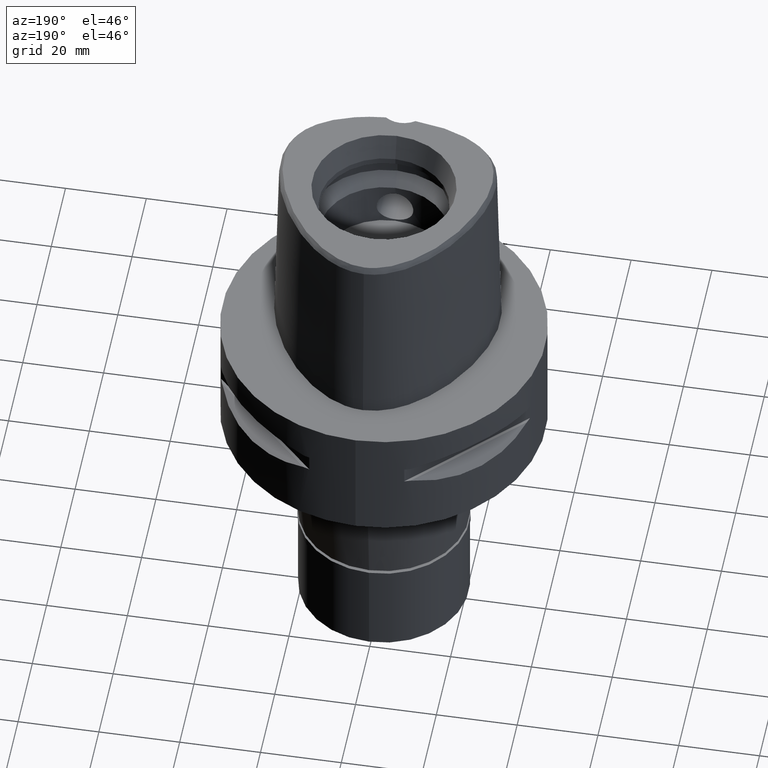
[diagram: clean part render]
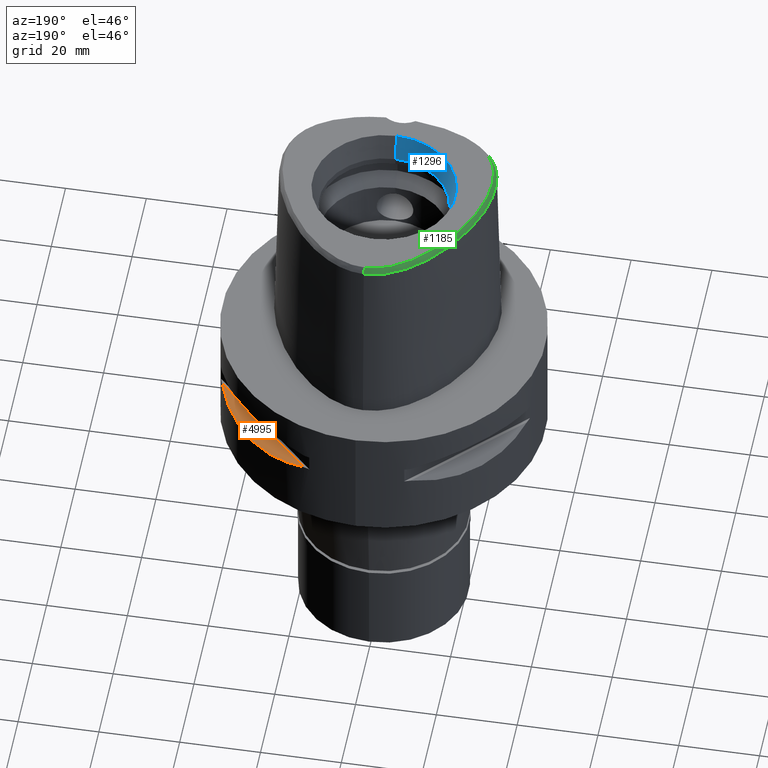
[diagram: same view with three faces highlighted in distinct colors, each labeled with its STEP entity id]
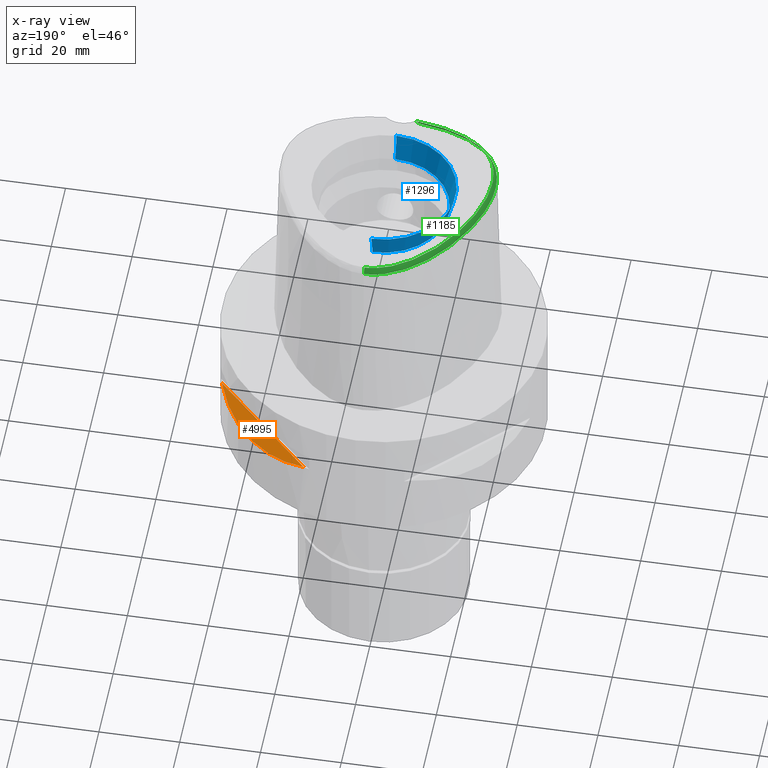
[diagram: x-ray of the same camera — body ghosted, the three highlighted faces saturated]
A machine part, auxiliary view with three faces highlighted in distinct colors.
The next image is the same camera in x-ray (body ghosted, the three faces saturated) — at least one of them is partly hidden behind the body in this view.
Their STEP definitions:

[orange] entity #4995 — the highlighted planar face has unit normal (-0.3536, -0.3536, -0.866).
#94 = CARTESIAN_POINT ( 'NONE',  ( 22.55421454656422853, 33.03835700910543949, -15.93168855142912044 ) ) ;
#198 = CARTESIAN_POINT ( 'NONE',  ( 18.89342208871622120, 35.39137327286633194, -15.39779115588365599 ) ) ;
#392 = CARTESIAN_POINT ( 'NONE',  ( 36.35358138589327126, 16.81132763100201544, -14.94059947015120926 ) ) ;
#438 = CARTESIAN_POINT ( 'NONE',  ( 33.79139713908592313, 21.40429668490280335, -15.76966389594719864 ) ) ;
#466 = FACE_OUTER_BOUND ( 'NONE', #1124, .T. ) ;
#757 = VERTEX_POINT ( 'NONE', #4794 ) ;
#776 = CARTESIAN_POINT ( 'NONE',  ( 30.34851826271004782, 26.21995747454793602, -16.33009976521915263 ) ) ;
#845 = CARTESIAN_POINT ( 'NONE',  ( 37.74622163926999718, 13.23717311056000057, -14.05000000000000071 ) ) ;
#1124 = EDGE_LOOP ( 'NONE', ( #4839, #3040 ) ) ;
#1168 = AXIS2_PLACEMENT_3D ( 'NONE', #2107, #2431, #4819 ) ;
#1173 = CARTESIAN_POINT ( 'NONE',  ( 33.91944728533342612, 21.20128033779756294, -15.73905907260444614 ) ) ;
#1268 = CARTESIAN_POINT ( 'NONE',  ( 21.75464223249177920, 33.56701934068340165, -15.82109001420614547 ) ) ;
#1573 = CARTESIAN_POINT ( 'NONE',  ( 21.50560509406271237, 33.72697758561020009, -15.78472370821742921 ) ) ;
#1652 = CARTESIAN_POINT ( 'NONE',  ( 23.60097336452848182, 32.30995221951866370, -16.06165603927653507 ) ) ;
#1662 = B_SPLINE_CURVE_WITH_KNOTS ( 'NONE', 3,
 ( #845, #4342, #392, #3511, #4676, #2399, #1173, #3960, #438, #2797, #3210, #2427, #776, #3988, #3587, #1652, #94, #3914, #1268, #2351, #2448, #4393, #1573, #198, #1822, #1776 ),
 .UNSPECIFIED., .F., .F.,
 ( 4, 1, 1, 1, 1, 1, 1, 2, 2, 2, 1, 1, 1, 1, 1, 1, 2, 2, 4 ),
 ( 0.0000000000000000000, 0.1249999999999915345, 0.1874999999999875377, 0.2187499999999857891, 0.2343749999999851508, 0.2421874999999849842, 0.2460937499999846234, 0.2480468749999845957, 0.2499999999999845679, 0.5000000000000065503, 0.6250000000000176525, 0.6875000000000233147, 0.7187500000000262013, 0.7343750000000277556, 0.7421875000000283107, 0.7460937500000288658, 0.7480468750000289768, 0.7500000000000289768, 1.000000000000000000 ),
 .UNSPECIFIED. ) ;
#1776 = CARTESIAN_POINT ( 'NONE',  ( 13.23717311056000057, 37.74622163926999718, -14.05000000000000071 ) ) ;
#1822 = CARTESIAN_POINT ( 'NONE',  ( 16.14402792110257678, 36.72682052670324993, -14.82054974552758786 ) ) ;
#2049 = CARTESIAN_POINT ( 'NONE',  ( 13.23717311056000057, 37.74622163926999718, -14.05000000000000071 ) ) ;
#2107 = CARTESIAN_POINT ( 'NONE',  ( 43.16936690458000214, 7.814027845251999338, -14.05000000000000071 ) ) ;
#2351 = CARTESIAN_POINT ( 'NONE',  ( 21.62017158009643936, 33.65365962422873736, -15.80156334789086969 ) ) ;
#2399 = CARTESIAN_POINT ( 'NONE',  ( 34.09685321779859635, 20.91613153242112588, -15.69507322892875756 ) ) ;
#2417 = DIRECTION ( 'NONE',  ( 0.7071067811865474617, -0.7071067811865474617, 0.0000000000000000000 ) ) ;
#2427 = CARTESIAN_POINT ( 'NONE',  ( 32.16767032370579216, 23.95303639238192162, -16.14729882780368442 ) ) ;
#2431 = DIRECTION ( 'NONE',  ( -0.3535533905933054277, -0.3535533905933049836, -0.8660254037844130615 ) ) ;
#2441 = CARTESIAN_POINT ( 'NONE',  ( 13.23717311056000057, 37.74622163926999718, -14.05000000000000071 ) ) ;
#2448 = CARTESIAN_POINT ( 'NONE',  ( 21.56243030661629945, 33.69065616467204194, -15.79309434609245422 ) ) ;
#2755 = VERTEX_POINT ( 'NONE', #2049 ) ;
#2797 = CARTESIAN_POINT ( 'NONE',  ( 33.76566745675005166, 21.44484052678286190, -15.77571175125576808 ) ) ;
#3040 = ORIENTED_EDGE ( 'NONE', *, *, #4112, .T. ) ;
#3210 = CARTESIAN_POINT ( 'NONE',  ( 33.75216276490053247, 21.46607685731535753, -15.77886817953057630 ) ) ;
#3215 = PLANE ( 'NONE',  #1168 ) ;
#3276 = VECTOR ( 'NONE', #2417, 1000.000000000000114 ) ;
#3511 = CARTESIAN_POINT ( 'NONE',  ( 35.11589783530614284, 19.18269457493275354, -15.40342377741106539 ) ) ;
#3587 = CARTESIAN_POINT ( 'NONE',  ( 25.62819065486032599, 30.77249687754699181, -16.26160051742884249 ) ) ;
#3914 = CARTESIAN_POINT ( 'NONE',  ( 22.02254759438254084, 33.39247868354903659, -15.85920599531261210 ) ) ;
#3960 = CARTESIAN_POINT ( 'NONE',  ( 33.82993376593504564, 21.34345216682095625, -15.76055673748757613 ) ) ;
#3988 = CARTESIAN_POINT ( 'NONE',  ( 27.25214773983623928, 29.31642813391731295, -16.33014064577227487 ) ) ;
#4112 = EDGE_CURVE ( 'NONE', #757, #2755, #1662, .T. ) ;
#4342 = CARTESIAN_POINT ( 'NONE',  ( 37.23659447744845608, 14.69039122918119666, -14.43521939500983819 ) ) ;
#4346 = EDGE_CURVE ( 'NONE', #2755, #757, #4786, .T. ) ;
#4393 = CARTESIAN_POINT ( 'NONE',  ( 21.52391145898906544, 33.71529052282368610, -15.78742602700007680 ) ) ;
#4676 = CARTESIAN_POINT ( 'NONE',  ( 34.44518065740277279, 20.34261333234973534, -15.60313948593975120 ) ) ;
#4786 = LINE ( 'NONE', #2441, #3276 ) ;
#4794 = CARTESIAN_POINT ( 'NONE',  ( 37.74622163926999718, 13.23717311056000057, -14.05000000000000071 ) ) ;
#4819 = DIRECTION ( 'NONE',  ( 0.0000000000000000000, -0.9258200997725358761, 0.3779644730092654448 ) ) ;
#4839 = ORIENTED_EDGE ( 'NONE', *, *, #4346, .T. ) ;
#4995 = ADVANCED_FACE ( 'NONE', ( #466 ), #3215, .F. ) ;

[blue] entity #1296 — the highlighted conical surface has half-angle 15 deg.
#64 = CARTESIAN_POINT ( 'NONE',  ( 0.0000000000000000000, 16.00000000000000000, 41.60000000000000142 ) ) ;
#135 = CARTESIAN_POINT ( 'NONE',  ( 0.0000000000000000000, 0.0000000000000000000, 48.00000000000000000 ) ) ;
#701 = CARTESIAN_POINT ( 'NONE',  ( 0.0000000000000000000, 0.0000000000000000000, 41.60000000000000142 ) ) ;
#738 = AXIS2_PLACEMENT_3D ( 'NONE', #135, #835, #886 ) ;
#742 = CARTESIAN_POINT ( 'NONE',  ( 0.0000000000000000000, 0.0000000000000000000, 44.79999999999999716 ) ) ;
#743 = ORIENTED_EDGE ( 'NONE', *, *, #4340, .T. ) ;
#835 = DIRECTION ( 'NONE',  ( 0.0000000000000000000, 0.0000000000000000000, 1.000000000000000000 ) ) ;
#886 = DIRECTION ( 'NONE',  ( 0.0000000000000000000, 1.000000000000000000, 0.0000000000000000000 ) ) ;
#941 = VERTEX_POINT ( 'NONE', #3027 ) ;
#1063 = VERTEX_POINT ( 'NONE', #1784 ) ;
#1296 = ADVANCED_FACE ( 'NONE', ( #3084 ), #3304, .F. ) ;
#1416 = VERTEX_POINT ( 'NONE', #5032 ) ;
#1449 = DIRECTION ( 'NONE',  ( 0.0000000000000000000, -0.2588190451025869088, 0.9659258262890505486 ) ) ;
#1638 = EDGE_LOOP ( 'NONE', ( #3102, #3596, #3411, #743 ) ) ;
#1784 = CARTESIAN_POINT ( 'NONE',  ( 0.0000000000000000000, 17.71487483155999954, 48.00000000000000000 ) ) ;
#1825 = DIRECTION ( 'NONE',  ( 0.0000000000000000000, 0.0000000000000000000, 1.000000000000000000 ) ) ;
#2031 = DIRECTION ( 'NONE',  ( 0.0000000000000000000, 0.2588190451025869088, 0.9659258262890505486 ) ) ;
#2244 = EDGE_CURVE ( 'NONE', #2711, #941, #4047, .T. ) ;
#2247 = AXIS2_PLACEMENT_3D ( 'NONE', #701, #4957, #3890 ) ;
#2709 = VECTOR ( 'NONE', #2031, 1000.000000000000000 ) ;
#2711 = VERTEX_POINT ( 'NONE', #64 ) ;
#2727 = CARTESIAN_POINT ( 'NONE',  ( 0.0000000000000000000, 16.00000000000000000, 41.60000000000000142 ) ) ;
#3027 = CARTESIAN_POINT ( 'NONE',  ( 0.0000000000000000000, -16.00000000000000000, 41.60000000000000142 ) ) ;
#3084 = FACE_OUTER_BOUND ( 'NONE', #1638, .T. ) ;
#3102 = ORIENTED_EDGE ( 'NONE', *, *, #4800, .F. ) ;
#3304 = CONICAL_SURFACE ( 'NONE', #3543, 16.85743741578000154, 0.2617993877991000029 ) ;
#3411 = ORIENTED_EDGE ( 'NONE', *, *, #4003, .T. ) ;
#3543 = AXIS2_PLACEMENT_3D ( 'NONE', #742, #1825, #5003 ) ;
#3596 = ORIENTED_EDGE ( 'NONE', *, *, #2244, .F. ) ;
#3890 = DIRECTION ( 'NONE',  ( 0.0000000000000000000, 1.000000000000000000, 0.0000000000000000000 ) ) ;
#4003 = EDGE_CURVE ( 'NONE', #2711, #1063, #4371, .T. ) ;
#4047 = CIRCLE ( 'NONE', #2247, 16.00000000000000000 ) ;
#4217 = LINE ( 'NONE', #4883, #4752 ) ;
#4340 = EDGE_CURVE ( 'NONE', #1063, #1416, #5000, .T. ) ;
#4371 = LINE ( 'NONE', #2727, #2709 ) ;
#4752 = VECTOR ( 'NONE', #1449, 1000.000000000000000 ) ;
#4800 = EDGE_CURVE ( 'NONE', #941, #1416, #4217, .T. ) ;
#4883 = CARTESIAN_POINT ( 'NONE',  ( 0.0000000000000000000, -16.00000000000000000, 41.60000000000000142 ) ) ;
#4957 = DIRECTION ( 'NONE',  ( 0.0000000000000000000, 0.0000000000000000000, 1.000000000000000000 ) ) ;
#5000 = CIRCLE ( 'NONE', #738, 17.71487483155999954 ) ;
#5003 = DIRECTION ( 'NONE',  ( 0.0000000000000000000, 1.000000000000000000, 0.0000000000000000000 ) ) ;
#5032 = CARTESIAN_POINT ( 'NONE',  ( 0.0000000000000000000, -17.71487483155999954, 48.00000000000000000 ) ) ;

[green] entity #1185 — the highlighted face is a freeform B-spline surface patch.
#8 = CARTESIAN_POINT ( 'NONE',  ( -25.35524926864999884, 1.556082187546999895, 46.95311489408000227 ) ) ;
#35 = CARTESIAN_POINT ( 'NONE',  ( -20.28439755927000121, 13.19727454158000057, 46.95311489878000089 ) ) ;
#50 = CARTESIAN_POINT ( 'NONE',  ( -1.216549040600000094E-11, 28.41206021534999593, 46.52071719450999154 ) ) ;
#52 = CARTESIAN_POINT ( 'NONE',  ( -3.200281168442999924, -24.40700646898000059, 46.33865665327000016 ) ) ;
#55 = CARTESIAN_POINT ( 'NONE',  ( -24.57737414961999889, 3.019733774041000185, 47.56757463800000352 ) ) ;
#77 = CARTESIAN_POINT ( 'NONE',  ( -25.31129339834999570, -1.486760530842999861, 48.18203439223000117 ) ) ;
#93 = CARTESIAN_POINT ( 'NONE',  ( -4.489954052492726611, 26.80204639255456200, 48.00000000000842704 ) ) ;
#97 = EDGE_CURVE ( 'NONE', #4081, #3996, #4103, .T. ) ;
#106 = CARTESIAN_POINT ( 'NONE',  ( -21.85802095192999772, 9.679732034356000270, 47.56757516235000338 ) ) ;
#120 = CARTESIAN_POINT ( 'NONE',  ( -4.472216406693000579, -24.20008985674000357, 46.52070903171000538 ) ) ;
#122 = CARTESIAN_POINT ( 'NONE',  ( -24.34597371488892747, 2.947766319392898016, 48.00000000000918732 ) ) ;
#129 = CARTESIAN_POINT ( 'NONE',  ( -26.08799141399999755, -9.326046753732001093, 46.95311475587000416 ) ) ;
#141 = CARTESIAN_POINT ( 'NONE',  ( -22.45665628223481392, 7.877471279647881630, 48.00000000000441247 ) ) ;
#152 = CARTESIAN_POINT ( 'NONE',  ( -25.03115757357000248, -10.83704290951000004, 48.18203441053000091 ) ) ;
#171 = CARTESIAN_POINT ( 'NONE',  ( -23.26140416529554500, -14.77902311538010771, 48.00000000000509459 ) ) ;
#182 = CARTESIAN_POINT ( 'NONE',  ( -25.50402525418000010, -2.807601187403000242, 48.18203438791999815 ) ) ;
#200 = CARTESIAN_POINT ( 'NONE',  ( -16.58720414441635072, 17.44590650687523592, 47.99999999999558753 ) ) ;
#207 = CARTESIAN_POINT ( 'NONE',  ( -23.45893058961999955, -14.91950036497000021, 47.56757460384999803 ) ) ;
#229 = CARTESIAN_POINT ( 'NONE',  ( -26.24370834747000103, -10.28154923696999923, 46.33865497773000186 ) ) ;
#261 = CARTESIAN_POINT ( 'NONE',  ( -10.80936205844000142, -22.87425721337000084, 46.95311487793000538 ) ) ;
#268 = CARTESIAN_POINT ( 'NONE',  ( -3.650945221519999784, 26.95818596425000280, 48.18203433202000241 ) ) ;
#288 = CARTESIAN_POINT ( 'NONE',  ( -23.02427708367000037, -16.56592042710000356, 46.33865521073000338 ) ) ;
#293 = FACE_OUTER_BOUND ( 'NONE', #3884, .T. ) ;
#299 = CARTESIAN_POINT ( 'NONE',  ( -8.971737426778998881, 24.44210018494999659, 48.18203440172999308 ) ) ;
#315 = CARTESIAN_POINT ( 'NONE',  ( -13.61740908103000081, -21.66146924533999751, 47.56757473023999694 ) ) ;
#323 = CARTESIAN_POINT ( 'NONE',  ( -4.456789541631999363, 26.70555799090999827, 48.18203436042000476 ) ) ;
#341 = VERTEX_POINT ( 'NONE', #2251 ) ;
#346 = CARTESIAN_POINT ( 'NONE',  ( -17.02541098984000101, -19.81484835010000012, 48.18203440474999866 ) ) ;
#353 = CARTESIAN_POINT ( 'NONE',  ( 0.4905894025820000115, 27.47406996017999958, 48.18203441722999969 ) ) ;
#373 = CARTESIAN_POINT ( 'NONE',  ( -20.88014575669999928, -18.12854367263000199, 46.95311477178999837 ) ) ;
#377 = CARTESIAN_POINT ( 'NONE',  ( -10.58671825639000019, 24.57930293356999840, 46.33865492272999376 ) ) ;
#399 = CARTESIAN_POINT ( 'NONE',  ( -24.68935036410999828, 1.380335058757000022, 48.18203440302999496 ) ) ;
#425 = CARTESIAN_POINT ( 'NONE',  ( -21.26029746006000209, 11.53314135556999886, 46.95311493870000419 ) ) ;
#446 = CARTESIAN_POINT ( 'NONE',  ( -20.95979655504000050, 11.36501838080000049, 47.56757466698000059 ) ) ;
#463 = CARTESIAN_POINT ( 'NONE',  ( -4.215900509063000179, -23.92536737045000095, 47.05180719188000182 ) ) ;
#470 = CARTESIAN_POINT ( 'NONE',  ( -25.99024399714000211, -1.371178339081999820, 46.95311495623000297 ) ) ;
#487 = CARTESIAN_POINT ( 'NONE',  ( -6.203520479231302787, 26.11107304852786726, 48.00000000000571987 ) ) ;
#498 = CARTESIAN_POINT ( 'NONE',  ( -14.77877013910999970, 20.41107530207000309, 46.95311714735999686 ) ) ;
#514 = CARTESIAN_POINT ( 'NONE',  ( -14.87405714085055131, -21.87944447072268161, 46.52070903171006933 ) ) ;
#517 = CARTESIAN_POINT ( 'NONE',  ( -19.78446217835176668, 12.89029827906403369, 48.00000000000331113 ) ) ;
#526 = CARTESIAN_POINT ( 'NONE',  ( -25.68849967828000302, -6.318222526770000513, 48.18203434043999778 ) ) ;
#540 = CARTESIAN_POINT ( 'NONE',  ( -25.64644810598788283, -8.319642749356461309, 48.00000000000968470 ) ) ;
#549 = CARTESIAN_POINT ( 'NONE',  ( -25.98320878302999759, -7.370619234543999809, 47.56757486230999632 ) ) ;
#561 = CARTESIAN_POINT ( 'NONE',  ( -18.76020591298052409, 14.48413071376458383, 48.00000000000543565 ) ) ;
#566 = VERTEX_POINT ( 'NONE', #3429 ) ;
#571 = CARTESIAN_POINT ( 'NONE',  ( -24.84673671144000195, -12.40520184559999883, 47.56757477104999765 ) ) ;
#585 = CARTESIAN_POINT ( 'NONE',  ( -0.9629684636075331872, 28.41206041873785182, 46.52070903171006222 ) ) ;
#587 = CARTESIAN_POINT ( 'NONE',  ( -18.95547945645238741, -18.80500687501653090, 48.00000000000466116 ) ) ;
#596 = CARTESIAN_POINT ( 'NONE',  ( -26.02363012296000022, -11.12436939730999974, 46.33865507113999627 ) ) ;
#612 = CARTESIAN_POINT ( 'NONE',  ( -2.897876354792745524, 28.19692242654810954, 46.52070903171006933 ) ) ;
#614 = CARTESIAN_POINT ( 'NONE',  ( -0.6921675427512234968, 27.57027402749654499, 48.00000000000503064 ) ) ;
#622 = CARTESIAN_POINT ( 'NONE',  ( -26.67020875740999841, -7.420008404609999886, 46.33865596082999616 ) ) ;
#645 = CARTESIAN_POINT ( 'NONE',  ( -21.34220019965999882, -17.27992379351000096, 47.56757459936000032 ) ) ;
#672 = CARTESIAN_POINT ( 'NONE',  ( -17.18440607121999975, -20.12032106757000349, 47.56757464446000228 ) ) ;
#679 = CARTESIAN_POINT ( 'NONE',  ( -10.18067946116999956, 24.02298986062999830, 47.56757459210999883 ) ) ;
#699 = CARTESIAN_POINT ( 'NONE',  ( -12.12249129587999974, -21.79093524255999981, 48.18203436503000603 ) ) ;
#707 = CARTESIAN_POINT ( 'NONE',  ( 0.5319041783267999257, 28.50616231968999870, 46.33865500993999831 ) ) ;
#713 = CARTESIAN_POINT ( 'NONE',  ( -0.2321695341564309067, 27.58331912251146179, 48.00000000000255795 ) ) ;
#720 = CARTESIAN_POINT ( 'NONE',  ( -19.46452496604999993, -19.58466976345000177, 46.33865601318999694 ) ) ;
#727 = CARTESIAN_POINT ( 'NONE',  ( -7.384565499091999996, 26.18121660743999968, 46.95311532211999861 ) ) ;
#749 = CARTESIAN_POINT ( 'NONE',  ( -20.31937426484999776, -18.99424473124999935, 46.33865551956999695 ) ) ;
#756 = CARTESIAN_POINT ( 'NONE',  ( -9.540608335534001228, 25.30448680437000064, 46.33865515142999669 ) ) ;
#781 = CARTESIAN_POINT ( 'NONE',  ( -10.38369885877999899, 24.30114639710000191, 46.95311475741999629 ) ) ;
#799 = CARTESIAN_POINT ( 'NONE',  ( -4.344822341750000483, -23.28190846156000049, 48.18203421144000487 ) ) ;
#803 = CARTESIAN_POINT ( 'NONE',  ( -18.67552984298999874, 14.42724453830999920, 48.18203431709000739 ) ) ;
#819 = EDGE_CURVE ( 'NONE', #566, #4081, #4952, .T. ) ;
#829 = CARTESIAN_POINT ( 'NONE',  ( -15.39557503846000053, 18.71219421750000222, 48.18203430868000225 ) ) ;
#854 = CARTESIAN_POINT ( 'NONE',  ( -25.68819872091999912, 1.643955751940999965, 46.33865513960000015 ) ) ;
#869 = LINE ( 'NONE', #1601, #1072 ) ;
#870 = CARTESIAN_POINT ( 'NONE',  ( -3.751223654344000291, -23.51557938650999802, 47.85135676619999856 ) ) ;
#871 = CARTESIAN_POINT ( 'NONE',  ( -3.153783903297000091, -23.72008811544000295, 47.56757504253999969 ) ) ;
#876 = CARTESIAN_POINT ( 'NONE',  ( -14.27963786912000010, 19.93655695304000020, 48.18203401121999718 ) ) ;
#904 = CARTESIAN_POINT ( 'NONE',  ( -13.64894785951999978, 21.54744578591000348, 46.95311747360000254 ) ) ;
#923 = CARTESIAN_POINT ( 'NONE',  ( -21.17991838301641749, -17.09989881138010048, 48.00000000000500933 ) ) ;
#937 = CARTESIAN_POINT ( 'NONE',  ( -26.31358587963000062, -4.000919998209000461, 46.95311511525000014 ) ) ;
#952 = CARTESIAN_POINT ( 'NONE',  ( -24.78798701905811441, 1.406367702424668131, 48.00000000000323297 ) ) ;
#961 = CARTESIAN_POINT ( 'NONE',  ( -26.71889464578000073, -5.193672559979000347, 46.33865501238999940 ) ) ;
#973 = CARTESIAN_POINT ( 'NONE',  ( -12.44957317646133887, 23.16260189109643974, 46.52070903171006933 ) ) ;
#975 = CARTESIAN_POINT ( 'NONE',  ( -17.07251346402492231, -19.90534499102769672, 48.00000000000147082 ) ) ;
#985 = CARTESIAN_POINT ( 'NONE',  ( -23.91713556347999869, -13.54570143987999842, 48.18203438318000309 ) ) ;
#999 = CARTESIAN_POINT ( 'NONE',  ( -13.53666233734578128, -21.43297585322376264, 48.00000000000152767 ) ) ;
#1008 = CARTESIAN_POINT ( 'NONE',  ( -22.74100647590000079, -15.30030842416999981, 48.18203434866000379 ) ) ;
#1034 = CARTESIAN_POINT ( 'NONE',  ( -18.17983184727000179, -19.57004488578000334, 47.56757471489999745 ) ) ;
#1050 = CARTESIAN_POINT ( 'NONE',  ( -1.406513445700645404, 27.50987728443240599, 48.00000000001251266 ) ) ;
#1059 = CARTESIAN_POINT ( 'NONE',  ( -19.08797704237999682, -19.00794246447999924, 47.56757487593999656 ) ) ;
#1066 = CARTESIAN_POINT ( 'NONE',  ( -5.679033624475000153, 27.35239839836999920, 46.33865505610000213 ) ) ;
#1072 = VECTOR ( 'NONE', #4743, 1000.000000000000114 ) ;
#1090 = CARTESIAN_POINT ( 'NONE',  ( -16.23917501625999904, -20.96838910225999797, 46.95311515633999733 ) ) ;
#1097 = CARTESIAN_POINT ( 'NONE',  ( -0.7254933825552000171, 28.15613841926999683, 46.95311470710999657 ) ) ;
#1120 = CARTESIAN_POINT ( 'NONE',  ( -9.123940369989000487, -22.91480803972000047, 47.56757464258000567 ) ) ;
#1129 = CARTESIAN_POINT ( 'NONE',  ( -3.102511674850000123, 28.16433146055999970, 46.33865545493999605 ) ) ;
#1137 = CARTESIAN_POINT ( 'NONE',  ( 0.7469972473267000312, 27.45987239827000082, 48.18203449069999778 ) ) ;
#1147 = CARTESIAN_POINT ( 'NONE',  ( -22.44426527042999808, -17.18123822165999570, 46.33865504155999560 ) ) ;
#1154 = CARTESIAN_POINT ( 'NONE',  ( -8.526747637472999131, 25.93765594634999871, 46.33865520482999756 ) ) ;
#1180 = CARTESIAN_POINT ( 'NONE',  ( -2.873367621086000412, 27.15682948762000137, 48.18203436848000365 ) ) ;
#1185 = ADVANCED_FACE ( 'NONE', ( #293 ), #4020, .F. ) ;
#1204 = CARTESIAN_POINT ( 'NONE',  ( -25.37829020642000089, -0.01653242016739999917, 47.56757478537999617 ) ) ;
#1225 = CARTESIAN_POINT ( 'NONE',  ( -17.88349423425000140, 16.15350360200000068, 47.56757476878999569 ) ) ;
#1245 = CARTESIAN_POINT ( 'NONE',  ( -2.872156294537000054, -23.39265138113000120, 48.18203424931999734 ) ) ;
#1251 = CARTESIAN_POINT ( 'NONE',  ( -26.05132457387999878, 0.1295651320610000101, 46.33865566526999658 ) ) ;
#1270 = CARTESIAN_POINT ( 'NONE',  ( -3.504922213951000121, -24.38552137697999811, 46.33865675113000293 ) ) ;
#1277 = CARTESIAN_POINT ( 'NONE',  ( -22.16512159702999796, 9.835476865803999047, 46.95311613796000216 ) ) ;
#1289 = CARTESIAN_POINT ( 'NONE',  ( -7.937300651753586678, -23.78071178104019623, 46.52070903171006933 ) ) ;
#1290 = CARTESIAN_POINT ( 'NONE',  ( -2.895995683504349660, 27.25632069045063588, 48.00000000000500933 ) ) ;
#1297 = CARTESIAN_POINT ( 'NONE',  ( -24.36356286368999946, 4.745995165733999599, 46.95311468116999976 ) ) ;
#1308 = CARTESIAN_POINT ( 'NONE',  ( -20.71467387648133851, -18.66855143331027378, 46.52070903171006933 ) ) ;
#1309 = CARTESIAN_POINT ( 'NONE',  ( -5.621443921965807888, -23.25305008129186746, 48.00000000001158895 ) ) ;
#1319 = CARTESIAN_POINT ( 'NONE',  ( -26.32670877021999800, -7.395313819576999848, 46.95311541157000335 ) ) ;
#1338 = CARTESIAN_POINT ( 'NONE',  ( -7.390055773640864523, -22.99586658607940137, 48.00000000000366640 ) ) ;
#1348 = CARTESIAN_POINT ( 'NONE',  ( -26.03279950543999632, -6.325694175847999645, 47.56757479721999715 ) ) ;
#1368 = CARTESIAN_POINT ( 'NONE',  ( -15.47246034441344875, 18.77924032487164752, 48.00000000000600409 ) ) ;
#1374 = CARTESIAN_POINT ( 'NONE',  ( -24.82167762993000082, -14.04517351772000033, 46.33865532083000005 ) ) ;
#1386 = CARTESIAN_POINT ( 'NONE',  ( -14.35357212122946002, 20.00684525407174519, 47.99999999999990052 ) ) ;
#1399 = CARTESIAN_POINT ( 'NONE',  ( -24.21864958563000059, -13.71219213248999935, 47.56757469573000208 ) ) ;
#1419 = CARTESIAN_POINT ( 'NONE',  ( -23.27921505517999989, -15.73021888807000046, 46.95311520677999795 ) ) ;
#1447 = CARTESIAN_POINT ( 'NONE',  ( -7.373297119792999510, -22.89524076817999898, 48.18203441248999752 ) ) ;
#1454 = CARTESIAN_POINT ( 'NONE',  ( -1.511550251320000093, 28.43515777335000294, 46.33865434658999760 ) ) ;
#1468 = CARTESIAN_POINT ( 'NONE',  ( -19.71139396598000104, -18.15889817793999939, 48.18203436140000662 ) ) ;
#1476 = CARTESIAN_POINT ( 'NONE',  ( -3.934269983648000402, 27.95179706632000105, 46.33865578761000137 ) ) ;
#1499 = CARTESIAN_POINT ( 'NONE',  ( -10.89483115240000011, -23.20783063581999883, 46.33865511396999892 ) ) ;
#1507 = CARTESIAN_POINT ( 'NONE',  ( -3.745386808895999842, 27.28938966493999985, 47.56757481721999881 ) ) ;
#1528 = CARTESIAN_POINT ( 'NONE',  ( -18.35353602741999524, -19.86740627375999679, 46.95311505469000224 ) ) ;
#1535 = CARTESIAN_POINT ( 'NONE',  ( -0.7059330819732999585, 27.81227060771000126, 47.56757457132999889 ) ) ;
#1552 = CARTESIAN_POINT ( 'NONE',  ( -18.52724020756000201, -20.16476766174000090, 46.33865539449000437 ) ) ;
#1557 = CARTESIAN_POINT ( 'NONE',  ( -12.30740821116000028, 22.31451238278000204, 47.56757525899999450 ) ) ;
#1582 = CARTESIAN_POINT ( 'NONE',  ( -25.04177302268999838, -0.08958119628159999515, 48.18203434543000441 ) ) ;
#1601 = CARTESIAN_POINT ( 'NONE',  ( -1.216549040600000094E-11, 28.41206021534999593, 46.52071719450999154 ) ) ;
#1603 = CARTESIAN_POINT ( 'NONE',  ( -3.428421081172000395, -23.35561990169999902, 48.18203422644999989 ) ) ;
#1608 = CARTESIAN_POINT ( 'NONE',  ( -15.02833627410999995, 20.64833447658000054, 46.33865871543000026 ) ) ;
#1627 = CARTESIAN_POINT ( 'NONE',  ( -4.472216406693000579, -24.20008985674000357, 46.52070903171000538 ) ) ;
#1629 = CARTESIAN_POINT ( 'NONE',  ( -4.442256097582999885, -24.31012657722000370, 46.33865688816000272 ) ) ;
#1633 = CARTESIAN_POINT ( 'NONE',  ( -25.23499634423000160, 3.224259731480999758, 46.33865509903999680 ) ) ;
#1647 = EDGE_CURVE ( 'NONE', #566, #341, #3871, .T. ) ;
#1660 = CARTESIAN_POINT ( 'NONE',  ( -26.32971929654000220, -1.313387243201999954, 46.33865523823000387 ) ) ;
#1676 = CARTESIAN_POINT ( 'NONE',  ( -3.678923649486310676, 27.05630543830159240, 47.99999999999815969 ) ) ;
#1688 = CARTESIAN_POINT ( 'NONE',  ( -22.36385386982000156, 7.835117107870000375, 48.18203413487999853 ) ) ;
#1701 = CARTESIAN_POINT ( 'NONE',  ( -19.77143225161697160, -18.24138896763881590, 48.00000000000783729 ) ) ;
#1708 = CARTESIAN_POINT ( 'NONE',  ( -25.90821237681999989, -10.20372686434000009, 46.95311479206999650 ) ) ;
#1722 = CARTESIAN_POINT ( 'NONE',  ( -21.64189922317465786, 9.570126786844825872, 48.00000000000295586 ) ) ;
#1731 = CARTESIAN_POINT ( 'NONE',  ( -25.44444635380000008, -11.80480974213999978, 46.95311503393999431 ) ) ;
#1750 = CARTESIAN_POINT ( 'NONE',  ( -25.78814000082077484, -5.219183132163657923, 48.00000000000435563 ) ) ;
#1761 = CARTESIAN_POINT ( 'NONE',  ( -25.84580913285000037, -2.765523242543000304, 47.56757468443999670 ) ) ;
#1777 = CARTESIAN_POINT ( 'NONE',  ( -12.14717624329316870, 22.13270362300422534, 48.00000000000713385 ) ) ;
#1787 = CARTESIAN_POINT ( 'NONE',  ( -23.73960802396999981, -15.11911312126999896, 46.95311478584999776 ) ) ;
#1809 = CARTESIAN_POINT ( 'NONE',  ( -26.37464867719999972, -5.203107819505000009, 46.95311481390999830 ) ) ;
#1831 = CARTESIAN_POINT ( 'NONE',  ( -9.265892239459999402, -23.58871037127000037, 46.33865511666999737 ) ) ;
#1841 = CARTESIAN_POINT ( 'NONE',  ( -6.595821295704999088, 26.95553885617000134, 46.33865555085999688 ) ) ;
#1855 = CARTESIAN_POINT ( 'NONE',  ( -18.00612766713000212, -19.27268349780000278, 48.18203437510000242 ) ) ;
#1863 = CARTESIAN_POINT ( 'NONE',  ( -11.22997351103999897, 23.22024190171000058, 47.56757459189000059 ) ) ;
#1880 = CARTESIAN_POINT ( 'NONE',  ( -9.194916304724999989, -23.25175920550000086, 46.95311487961999575 ) ) ;
#1888 = CARTESIAN_POINT ( 'NONE',  ( 0.01234742101498999961, 28.17706751728999848, 46.95311507468999679 ) ) ;
#1911 = CARTESIAN_POINT ( 'NONE',  ( -5.651187268119000073, -23.49354644265000047, 47.56757501200999627 ) ) ;
#1917 = CARTESIAN_POINT ( 'NONE',  ( -7.063274371535999130, 25.57197967492999879, 48.18203432859999680 ) ) ;
#1941 = CARTESIAN_POINT ( 'NONE',  ( -16.38342082638000363, -21.28109048533000092, 46.33865555579999551 ) ) ;
#1947 = CARTESIAN_POINT ( 'NONE',  ( -11.01426267959999983, 22.95181440612999779, 48.18203442687999427 ) ) ;
#1968 = CARTESIAN_POINT ( 'NONE',  ( -21.56079836508000014, 11.70126433032999991, 46.33865521041000335 ) ) ;
#1991 = CARTESIAN_POINT ( 'NONE',  ( -23.30362151702999896, 8.264018462105999774, 46.33865758688000369 ) ) ;
#2019 = CARTESIAN_POINT ( 'NONE',  ( -22.99036563462999894, 8.121051344026998464, 46.95311643621000286 ) ) ;
#2033 = CARTESIAN_POINT ( 'NONE',  ( -2.936074142507000051, -24.42339025926999696, 46.33865654246999810 ) ) ;
#2038 = CARTESIAN_POINT ( 'NONE',  ( -20.65929565002000245, 11.19689540604000122, 48.18203439527000143 ) ) ;
#2052 = CARTESIAN_POINT ( 'NONE',  ( -11.07816725942211633, 23.03133635782418409, 48.00000000000149925 ) ) ;
#2062 = CARTESIAN_POINT ( 'NONE',  ( -23.08751037554999996, 6.156436782852999556, 48.18203428051999992 ) ) ;
#2075 = CARTESIAN_POINT ( 'NONE',  ( -17.99241701171562724, -20.42933791836750146, 46.52070903171006933 ) ) ;
#2077 = CARTESIAN_POINT ( 'NONE',  ( -3.652529789304999941, -23.43985019791999846, 48.00000000000000000 ) ) ;
#2089 = CARTESIAN_POINT ( 'NONE',  ( -25.57271640616999875, -10.12590449170000007, 47.56757460642000268 ) ) ;
#2101 = CARTESIAN_POINT ( 'NONE',  ( -23.83579125613940164, -15.43164133759556655, 46.52070903171006933 ) ) ;
#2102 = CARTESIAN_POINT ( 'NONE',  ( -25.72853642076912450, -4.045150056830411067, 48.00000000000228795 ) ) ;
#2111 = CARTESIAN_POINT ( 'NONE',  ( -25.74884929306000103, -9.266106713296998976, 47.56757459146999878 ) ) ;
#2127 = CARTESIAN_POINT ( 'NONE',  ( -15.99341638177358504, -20.43562447748537281, 48.00000000000518696 ) ) ;
#2140 = CARTESIAN_POINT ( 'NONE',  ( -25.62680689153999936, -4.052840864801000365, 48.18203436457000777 ) ) ;
#2158 = CARTESIAN_POINT ( 'NONE',  ( -7.110865803013911801, 25.66222324296222368, 48.00000000000311218 ) ) ;
#2172 = CARTESIAN_POINT ( 'NONE',  ( -24.15131776117000229, -14.50371847421999938, 46.95311471676000536 ) ) ;
#2185 = CARTESIAN_POINT ( 'NONE',  ( -25.64632274978093207, 1.601536978524673360, 46.52070903171006933 ) ) ;
#2193 = CARTESIAN_POINT ( 'NONE',  ( -25.16676892903999985, -13.37656415590000059, 46.33865460623000132 ) ) ;
#2204 = CARTESIAN_POINT ( 'NONE',  ( -5.810185802762481089, 27.27372406630066948, 46.52070903171006933 ) ) ;
#2217 = CARTESIAN_POINT ( 'NONE',  ( -10.63842387052000049, -22.20711036844999953, 48.18203440583999964 ) ) ;
#2230 = CARTESIAN_POINT ( 'NONE',  ( -24.12841474588874746, 6.387994236496071565, 46.52070903171006933 ) ) ;
#2233 = CARTESIAN_POINT ( 'NONE',  ( -2.139154069216735898, 27.40627708266852025, 48.00000000001116263 ) ) ;
#2245 = CARTESIAN_POINT ( 'NONE',  ( -17.50239623395999899, -20.73126650250999958, 46.33865512387000507 ) ) ;
#2251 = CARTESIAN_POINT ( 'NONE',  ( -2.553408000957999972E-11, 27.58331912251000162, 48.00000000000000000 ) ) ;
#2254 = CARTESIAN_POINT ( 'NONE',  ( -2.949748972340000108, 27.49266347860000081, 47.56757473062999253 ) ) ;
#2272 = CARTESIAN_POINT ( 'NONE',  ( -9.052964435252999209, -22.57785687395000096, 48.18203440553999428 ) ) ;
#2280 = CARTESIAN_POINT ( 'NONE',  ( -0.7450536831370999646, 28.50000623081999862, 46.33865484288999426 ) ) ;
#2282 = ORIENTED_EDGE ( 'NONE', *, *, #97, .F. ) ;
#2298 = CARTESIAN_POINT ( 'NONE',  ( -14.77761560989000067, -20.85217963538999797, 48.18203440610000143 ) ) ;
#2307 = CARTESIAN_POINT ( 'NONE',  ( -6.305631017796000215, 26.33087595179999951, 47.56757475559999193 ) ) ;
#2329 = CARTESIAN_POINT ( 'NONE',  ( -18.89970308054000014, -18.71957881499000464, 48.18203430731000481 ) ) ;
#2334 = CARTESIAN_POINT ( 'NONE',  ( 0.5043609944970000036, 27.81810074668000254, 47.56757461480000160 ) ) ;
#2353 = CARTESIAN_POINT ( 'NONE',  ( -4.409778178972000084, -23.96738720532999878, 46.95311599592000107 ) ) ;
#2358 = CARTESIAN_POINT ( 'NONE',  ( -2.237679098100999742, 27.98474414346999950, 46.95311455676999657 ) ) ;
#2375 = CARTESIAN_POINT ( 'NONE',  ( -3.479421836358000064, -24.04222088522000078, 46.95311590957000192 ) ) ;
#2381 = CARTESIAN_POINT ( 'NONE',  ( -24.03942803716000398, 4.629767436159999860, 47.56757456061000511 ) ) ;
#2408 = CARTESIAN_POINT ( 'NONE',  ( -17.60585024474999827, 15.94982951626999679, 48.18203435242000410 ) ) ;
#2435 = CARTESIAN_POINT ( 'NONE',  ( -25.65076869773999846, -1.428969434962999996, 47.56757467423000207 ) ) ;
#2453 = CARTESIAN_POINT ( 'NONE',  ( -16.17415741794999917, 19.39113952658000173, 46.33865600072000035 ) ) ;
#2470 = CARTESIAN_POINT ( 'NONE',  ( -25.79049889473385448, -6.320436011330392567, 47.99999999999899103 ) ) ;
#2477 = CARTESIAN_POINT ( 'NONE',  ( -24.52016360777999893, -13.87868282510999940, 46.95311500828000106 ) ) ;
#2491 = CARTESIAN_POINT ( 'NONE',  ( -25.12916461511161970, -10.86541650940670145, 48.00000000000216005 ) ) ;
#2494 = CARTESIAN_POINT ( 'NONE',  ( -4.472216406693000579, -24.20008985674000357, 46.52070903171000538 ) ) ;
#2498 = ORIENTED_EDGE ( 'NONE', *, *, #1647, .T. ) ;
#2501 = CARTESIAN_POINT ( 'NONE',  ( -25.54519030945999702, -8.307140647927999666, 48.18203439185000292 ) ) ;
#2515 = CARTESIAN_POINT ( 'NONE',  ( -23.18199738827244616, 6.194888181192450105, 48.00000000000196820 ) ) ;
#2526 = CARTESIAN_POINT ( 'NONE',  ( -24.52843080958000144, -12.27365276533000049, 48.18203435146000402 ) ) ;
#2536 = CARTESIAN_POINT ( 'NONE',  ( -1.216549040600000094E-11, 28.41206021534999593, 46.52071719450999154 ) ) ;
#2539 = CARTESIAN_POINT ( 'NONE',  ( -22.82072892860657731, -15.36398915678147858, 48.00000000000691358 ) ) ;
#2549 = CARTESIAN_POINT ( 'NONE',  ( -23.56834272663000007, -14.13676145730999956, 48.18203443385999662 ) ) ;
#2563 = CARTESIAN_POINT ( 'NONE',  ( -26.68853359098614675, -5.367220537272420877, 46.52070903171006933 ) ) ;
#2575 = CARTESIAN_POINT ( 'NONE',  ( -23.01011076553999857, -15.51526365612000014, 47.56757477771999731 ) ) ;
#2588 = CARTESIAN_POINT ( 'NONE',  ( -25.28208905154272301, -12.92658008282388593, 46.52070903171006933 ) ) ;
#2596 = CARTESIAN_POINT ( 'NONE',  ( -15.16606458547999914, -21.80945586899999711, 46.33865511154999695 ) ) ;
#2620 = CARTESIAN_POINT ( 'NONE',  ( -21.95632486780000292, -16.69504935036000148, 47.56757462304000228 ) ) ;
#2629 = CARTESIAN_POINT ( 'NONE',  ( -7.545211062870000873, 26.48583507369999879, 46.33865581888000662 ) ) ;
#2649 = CARTESIAN_POINT ( 'NONE',  ( -12.22256170944999987, -22.12042712218000062, 47.56757473881999942 ) ) ;
#2657 = CARTESIAN_POINT ( 'NONE',  ( -0.6863727813914000109, 27.46840279615999947, 48.18203443553999676 ) ) ;
#2676 = CARTESIAN_POINT ( 'NONE',  ( -12.42270253659999923, -22.77941088143000314, 46.33865548639999332 ) ) ;
#2683 = CARTESIAN_POINT ( 'NONE',  ( -5.421342441354000563, 26.71362959354999944, 47.56757462681999726 ) ) ;
#2701 = CARTESIAN_POINT ( 'NONE',  ( -21.57279640516999919, -17.53573235318999934, 46.95311477498000130 ) ) ;
#2708 = CARTESIAN_POINT ( 'NONE',  ( -9.161361063031000285, 24.72956239142000001, 47.56757465163000376 ) ) ;
#2734 = CARTESIAN_POINT ( 'NONE',  ( -12.07972476174000143, 22.05616914383999827, 48.18203414606000479 ) ) ;
#2752 = CARTESIAN_POINT ( 'NONE',  ( 0.7675377384098999167, 27.80347973601000078, 47.56757444027000048 ) ) ;
#2758 = CARTESIAN_POINT ( 'NONE',  ( -21.55092030683000104, 9.523987202908999805, 48.18203418673999749 ) ) ;
#2780 = CARTESIAN_POINT ( 'NONE',  ( -14.52920400411000124, 20.17381612754999765, 47.56757557929000058 ) ) ;
#2805 = CARTESIAN_POINT ( 'NONE',  ( -13.40998812327000067, 21.29950186293000058, 47.56757571405000107 ) ) ;
#2835 = CARTESIAN_POINT ( 'NONE',  ( -17.31421100588999806, 18.02749602317999944, 46.33865458307000296 ) ) ;
#2848 = CARTESIAN_POINT ( 'NONE',  ( -9.073991136863240214, -22.67767904108652743, 48.00000000000076028 ) ) ;
#2853 = CARTESIAN_POINT ( 'NONE',  ( -24.24856305232000153, 2.917470795320999954, 48.18203440747999622 ) ) ;
#2865 = CARTESIAN_POINT ( 'NONE',  ( -22.59428085107104422, -16.95173346410580351, 46.52070903171006933 ) ) ;
#2867 = CARTESIAN_POINT ( 'NONE',  ( -18.05758772859816119, -19.36077714811569450, 48.00000000000325429 ) ) ;
#2878 = CARTESIAN_POINT ( 'NONE',  ( -24.85632620161000261, -13.22739508281000198, 46.95311455798000111 ) ) ;
#2893 = CARTESIAN_POINT ( 'NONE',  ( -24.62887906780374436, -14.21948995895294665, 46.52070903171006933 ) ) ;
#2895 = CARTESIAN_POINT ( 'NONE',  ( -12.15213727002596755, -21.88854758766736808, 48.00000000000310507 ) ) ;
#2908 = CARTESIAN_POINT ( 'NONE',  ( -26.57058176995999688, -8.433743719324001020, 46.33865524169999617 ) ) ;
#2922 = CARTESIAN_POINT ( 'NONE',  ( -9.027913645275431165, 24.52726119145381389, 48.00000000000054001 ) ) ;
#2932 = CARTESIAN_POINT ( 'NONE',  ( -23.85983024390000296, -14.32023996576000080, 47.56757457531000455 ) ) ;
#2947 = CARTESIAN_POINT ( 'NONE',  ( -25.74147105879054820, -7.353240448490033998, 48.00000000000628830 ) ) ;
#2957 = CARTESIAN_POINT ( 'NONE',  ( -25.88698746295999698, -8.349341671726000058, 47.56757467513000393 ) ) ;
#2981 = CARTESIAN_POINT ( 'NONE',  ( -23.54831934481999767, -15.94517412002000079, 46.33865563583999858 ) ) ;
#3003 = CARTESIAN_POINT ( 'NONE',  ( -13.84688510103000070, -22.31082984896000099, 46.33865545342999326 ) ) ;
#3009 = CARTESIAN_POINT ( 'NONE',  ( -5.292496849792999392, 26.39424519114000134, 48.18203441217999483 ) ) ;
#3030 = CARTESIAN_POINT ( 'NONE',  ( -17.34340115259000115, -20.42579378503999976, 46.95311488416000145 ) ) ;
#3039 = CARTESIAN_POINT ( 'NONE',  ( -7.223919935314000007, 25.87659814118999790, 47.56757482535999770 ) ) ;
#3064 = CARTESIAN_POINT ( 'NONE',  ( -7.486435275630999975, -23.57456856920999755, 46.95311483967000754 ) ) ;
#3070 = CARTESIAN_POINT ( 'NONE',  ( -4.568736826661999650, 27.03125598315000033, 47.56757474978999767 ) ) ;
#3092 = CARTESIAN_POINT ( 'NONE',  ( -5.735715564682999812, -24.17701855942999956, 46.33865653593999667 ) ) ;
#3098 = CARTESIAN_POINT ( 'NONE',  ( -2.122022347010999788, 27.30569211352000281, 48.18203446168999449 ) ) ;
#3118 = CARTESIAN_POINT ( 'NONE',  ( -20.66334530789000112, -17.86094986101999993, 47.56757459804000376 ) ) ;
#3125 = CARTESIAN_POINT ( 'NONE',  ( -4.792631396720999248, 27.68265196764999914, 46.33865552852000036 ) ) ;
#3148 = CARTESIAN_POINT ( 'NONE',  ( -18.16113822375000098, 16.35717768773000103, 46.95311518515999438 ) ) ;
#3173 = CARTESIAN_POINT ( 'NONE',  ( -16.50754563209999759, 17.38218144718000246, 48.18203446399999734 ) ) ;
#3188 = CARTESIAN_POINT ( 'NONE',  ( -3.943553785945999923, -23.67293023729000367, 47.54327672365999291 ) ) ;
#3189 = CARTESIAN_POINT ( 'NONE',  ( -3.453921458765000008, -23.69892039345999990, 47.56757506801000090 ) ) ;
#3194 = CARTESIAN_POINT ( 'NONE',  ( -25.02229981638000211, 1.468208623151999959, 47.56757464854999995 ) ) ;
#3217 = CARTESIAN_POINT ( 'NONE',  ( -19.53300573182000122, 15.00330485694999894, 46.33865592395000021 ) ) ;
#3231 = CARTESIAN_POINT ( 'NONE',  ( -25.51017841222404670, -9.223923978198921958, 48.00000000000375167 ) ) ;
#3239 = CARTESIAN_POINT ( 'NONE',  ( -13.88790759577000067, 21.79538970888999927, 46.33865923316000135 ) ) ;
#3260 = CARTESIAN_POINT ( 'NONE',  ( -25.48334851517999766, -12.66830000614000085, 46.33865561022000179 ) ) ;
#3275 = CARTESIAN_POINT ( 'NONE',  ( -20.74831938583926316, 11.24670202904923855, 48.00000000000205347 ) ) ;
#3283 = CARTESIAN_POINT ( 'NONE',  ( -25.97019638558000310, -4.026880431504999969, 47.56757473990999330 ) ) ;
#3301 = CARTESIAN_POINT ( 'NONE',  ( -25.60527911802436307, -2.795135548250288426, 48.00000000000176925 ) ) ;
#3309 = CARTESIAN_POINT ( 'NONE',  ( 0.7880782294929998821, 28.14708707376000163, 46.95311438985000052 ) ) ;
#3311 = CARTESIAN_POINT ( 'NONE',  ( -25.69280593983000216, -11.02859390136999984, 46.95311485094000403 ) ) ;
#3324 = CARTESIAN_POINT ( 'NONE',  ( -14.81597509389803591, -20.94671102736843338, 48.00000000000084555 ) ) ;
#3333 = CARTESIAN_POINT ( 'NONE',  ( -26.22878461646000048, -8.391542695525000539, 46.95311495842000227 ) ) ;
#3344 = CARTESIAN_POINT ( 'NONE',  ( -26.38518529509378752, -1.941591755871563185, 46.52070903171006933 ) ) ;
#3360 = CARTESIAN_POINT ( 'NONE',  ( -25.16504261330999981, -12.53675092587000073, 46.95311519062999395 ) ) ;
#3374 = CARTESIAN_POINT ( 'NONE',  ( -16.85032607015866191, 18.77963051275350281, 46.52070903171006933 ) ) ;
#3387 = CARTESIAN_POINT ( 'NONE',  ( -22.25376443823000017, -15.87752500086999774, 48.18203439524000942 ) ) ;
#3394 = CARTESIAN_POINT ( 'NONE',  ( -3.839828396271999900, 27.62059336563000045, 46.95311530241000497 ) ) ;
#3408 = CARTESIAN_POINT ( 'NONE',  ( -15.95068339602000229, -20.34298633613000007, 48.18203435742999829 ) ) ;
#3416 = CARTESIAN_POINT ( 'NONE',  ( 0.01275991734417000062, 28.52150446847999987, 46.33865542622999811 ) ) ;
#3424 = CARTESIAN_POINT ( 'NONE',  ( -21.32746397969966523, 12.31340991043347266, 46.52070903171006933 ) ) ;
#3429 = CARTESIAN_POINT ( 'NONE',  ( -3.652529789304999941, -23.43985019791999846, 48.00000000000000000 ) ) ;
#3437 = CARTESIAN_POINT ( 'NONE',  ( -7.429866197712001075, -23.23490466870000049, 47.56757462608000253 ) ) ;
#3445 = CARTESIAN_POINT ( 'NONE',  ( -1.433853090026000032, 27.75071514425999908, 47.56757444214999708 ) ) ;
#3465 = CARTESIAN_POINT ( 'NONE',  ( -5.693451416401000387, -23.83528250104000179, 46.95311577396999780 ) ) ;
#3472 = CARTESIAN_POINT ( 'NONE',  ( -8.351257116887000009, 25.64134751251999944, 46.95311493517999679 ) ) ;
#3492 = CARTESIAN_POINT ( 'NONE',  ( -15.03658159362000113, -21.49036379113000095, 46.95311487640000081 ) ) ;
#3497 = CARTESIAN_POINT ( 'NONE',  ( -11.44568434247999988, 23.48866939728000247, 46.95311475689000247 ) ) ;
#3522 = CARTESIAN_POINT ( 'NONE',  ( -22.67710975221999803, 7.978084225948001595, 47.56757528554999226 ) ) ;
#3546 = CARTESIAN_POINT ( 'NONE',  ( -19.69753244928999791, 12.83692065398000004, 48.18203440221000022 ) ) ;
#3571 = CARTESIAN_POINT ( 'NONE',  ( -23.72539492565999808, 6.416023282879999456, 46.95311559863000639 ) ) ;
#3588 = CARTESIAN_POINT ( 'NONE',  ( -3.130535270723999730, -23.37662893868000324, 48.18203423718000522 ) ) ;
#3594 = CARTESIAN_POINT ( 'NONE',  ( -18.96135513926000016, 14.61926464452000118, 47.56757485271000263 ) ) ;
#3611 = CARTESIAN_POINT ( 'NONE',  ( -5.330667503235257065, 26.48886318459678790, 48.00000000000473221 ) ) ;
#3615 = CARTESIAN_POINT ( 'NONE',  ( -3.177032535869999563, -24.06354729220999999, 46.95311584790000126 ) ) ;
#3620 = CARTESIAN_POINT ( 'NONE',  ( -23.40645265059999858, 6.286230032866000350, 47.56757493957000094 ) ) ;
#3639 = CARTESIAN_POINT ( 'NONE',  ( -25.14146662215196315, -0.06794041304908879364, 48.00000000000307665 ) ) ;
#3647 = CARTESIAN_POINT ( 'NONE',  ( -25.11934946143000147, -11.69108699467000001, 47.56757470632999230 ) ) ;
#3658 = CARTESIAN_POINT ( 'NONE',  ( -25.41186334295010951, -1.469639852780507017, 48.00000000001021760 ) ) ;
#3666 = CARTESIAN_POINT ( 'NONE',  ( -25.40970717212000096, -9.206166672861000322, 48.18203442705999606 ) ) ;
#3683 = CARTESIAN_POINT ( 'NONE',  ( -4.354443962178041971, -23.38344539136020472, 48.00000000000451195 ) ) ;
#3694 = CARTESIAN_POINT ( 'NONE',  ( -24.79425256904999841, -11.57736424721000112, 48.18203437871000006 ) ) ;
#3713 = CARTESIAN_POINT ( 'NONE',  ( -20.51077223929794258, -17.67263102127756724, 48.00000000000100897 ) ) ;
#3723 = CARTESIAN_POINT ( 'NONE',  ( -23.17825315526999930, -14.71988760868000057, 48.18203442184999830 ) ) ;
#3746 = CARTESIAN_POINT ( 'NONE',  ( -25.68615674003000038, -5.221978338558999511, 48.18203441696999789 ) ) ;
#3774 = CARTESIAN_POINT ( 'NONE',  ( -21.80339261067999601, -17.79154091287000128, 46.33865495060000228 ) ) ;
#3803 = CARTESIAN_POINT ( 'NONE',  ( -20.11671416523000033, -18.71579588015000084, 46.95311513350999633 ) ) ;
#3814 = CARTESIAN_POINT ( 'NONE',  ( -12.76277511001000065, 22.83119886064999804, 46.33865748487999525 ) ) ;
#3821 = CARTESIAN_POINT ( 'NONE',  ( -2.553408000957999972E-11, 27.58331912251000162, 48.00000000000000000 ) ) ;
#3830 = CARTESIAN_POINT ( 'NONE',  ( -13.50267107103000086, -21.33678894352999933, 48.18203436864000366 ) ) ;
#3837 = CARTESIAN_POINT ( 'NONE',  ( -1.395004509379000002, 27.40849382970999670, 48.18203448992999682 ) ) ;
#3856 = CARTESIAN_POINT ( 'NONE',  ( -5.608923119836999760, -23.15181038425999560, 48.18203425004000451 ) ) ;
#3863 = CARTESIAN_POINT ( 'NONE',  ( -8.175766596300999112, 25.34503907869000017, 47.56757466553000313 ) ) ;
#3871 = B_SPLINE_CURVE_WITH_KNOTS ( 'NONE', 3,
 ( #2077, #4895, #3683, #1309, #1338, #2848, #4793, #2895, #999, #3324, #2127, #975, #2867, #587, #1701, #3713, #923, #4101, #4033, #2539, #171, #4467, #4413, #4009, #4056, #4814, #2491, #4439, #3231, #540, #2947, #2470, #1750, #2102, #3301, #3658, #3639, #952, #122, #4488, #2515, #141, #1722, #3275, #517, #561, #4841, #200, #1368, #1386, #4077, #1777, #2052, #4872, #2922, #4513, #2158, #487, #3611, #93, #1676, #1290, #2233, #1050, #614, #713, #3821 ),
 .UNSPECIFIED., .F., .F.,
 ( 4, 1, 1, 1, 1, 1, 1, 1, 1, 1, 1, 1, 1, 1, 1, 1, 1, 1, 1, 1, 1, 1, 1, 1, 1, 1, 1, 1, 1, 1, 1, 1, 1, 1, 1, 1, 1, 1, 1, 1, 1, 1, 1, 1, 1, 1, 1, 1, 1, 1, 1, 1, 1, 1, 1, 1, 1, 1, 1, 1, 1, 1, 1, 1, 4 ),
 ( 0.0000000000000000000, 0.001025211071800091744, 0.01688195375320000746, 0.03273869643469995427, 0.04859543911610009204, 0.06445218179750000775, 0.08030892447889992347, 0.09616566716030006123, 0.1120224098416999770, 0.1278791525231999238, 0.1437358952045000304, 0.1595926378859000572, 0.1754493805672999729, 0.1913061232486999996, 0.2071628659301000264, 0.2230196086114999421, 0.2388763512929999999, 0.2547330939744000267, 0.2705898366558000534, 0.2864465793371999691, 0.3023033220184999648, 0.3181600646999001025, 0.3340168073814000493, 0.3498735500627999651, 0.3657302927441999918, 0.3815870354256000185, 0.3974437781070000453, 0.4133005207884000720, 0.4291572634697999877, 0.4450140061513000456, 0.4608707488326000412, 0.4767274915139999569, 0.4925842341953999837, 0.5084409768768000104, 0.5242977195582000371, 0.5401544622396999840, 0.5560112049211000107, 0.5718679476025000374, 0.5877246902838999532, 0.6035814329652000598, 0.6194381756466000866, 0.6352949183280000023, 0.6511516610095000601, 0.6670084036908999758, 0.6828651463723000026, 0.6987218890537000293, 0.7145786317350999450, 0.7304353744164999718, 0.7462921170980000296, 0.7621488597793000253, 0.7780056024607000520, 0.7938623451421000787, 0.8097190878234999944, 0.8255758305049000212, 0.8414325731862999369, 0.8572893158677999947, 0.8731460585492000215, 0.8890028012306000482, 0.9048595439119599959, 0.9207162865933600226, 0.9365730292747700414, 0.9524297719561699571, 0.9682865146375799759, 0.9841432573189800026, 1.000000000000000000 ),
 .UNSPECIFIED. ) ;
#3884 = EDGE_LOOP ( 'NONE', ( #2498, #5014, #2282, #4968 ) ) ;
#3889 = CARTESIAN_POINT ( 'NONE',  ( -14.90709860174999868, -21.17127171326000123, 47.56757464125000467 ) ) ;
#3895 = CARTESIAN_POINT ( 'NONE',  ( -2.295507473644999852, 28.32427015844000096, 46.33865460431000116 ) ) ;
#3919 = CARTESIAN_POINT ( 'NONE',  ( -17.04532254796000146, 17.81239116451000015, 46.95311454337999635 ) ) ;
#3943 = CARTESIAN_POINT ( 'NONE',  ( -15.91462995811999903, 19.16482442355000160, 46.95311543670000276 ) ) ;
#3971 = CARTESIAN_POINT ( 'NONE',  ( -19.24718043553999891, 14.81128475072999962, 46.95311538833000498 ) ) ;
#3990 = CARTESIAN_POINT ( 'NONE',  ( -2.893462243860000171, -23.73623100717000156, 47.56757501370000085 ) ) ;
#3994 = CARTESIAN_POINT ( 'NONE',  ( -23.71529321063999873, 4.513539706585000033, 48.18203444004999625 ) ) ;
#3996 = VERTEX_POINT ( 'NONE', #50 ) ;
#4009 = CARTESIAN_POINT ( 'NONE',  ( -24.32740975878667911, -12.97324844465319771, 48.00000000000177636 ) ) ;
#4015 = CARTESIAN_POINT ( 'NONE',  ( -15.65510249829000067, 18.93850932052000147, 47.56757487268999540 ) ) ;
#4020 = B_SPLINE_SURFACE_WITH_KNOTS ( 'NONE', 3, 3, ( 
 ( #1137, #2752, #3309, #4809 ),
 ( #353, #2334, #4986, #707 ),
 ( #4576, #4965, #1888, #3416 ),
 ( #2657, #1535, #1097, #2280 ),
 ( #3837, #3445, #5018, #1454 ),
 ( #3098, #5047, #2358, #3895 ),
 ( #1180, #2254, #4221, #1129 ),
 ( #268, #1507, #3394, #1476 ),
 ( #323, #3070, #4632, #3125 ),
 ( #3009, #2683, #4245, #1066 ),
 ( #4656, #2307, #4271, #1841 ),
 ( #1917, #3039, #727, #2629 ),
 ( #4604, #3863, #3472, #1154 ),
 ( #299, #2708, #4302, #756 ),
 ( #4191, #679, #781, #377 ),
 ( #1947, #1863, #3497, #5072 ),
 ( #2734, #1557, #4684, #3814 ),
 ( #4707, #2805, #904, #3239 ),
 ( #876, #2780, #498, #1608 ),
 ( #829, #4015, #3943, #2453 ),
 ( #3173, #4727, #3919, #2835 ),
 ( #2408, #1225, #3148, #4351 ),
 ( #803, #3594, #3971, #3217 ),
 ( #3546, #4379, #35, #4401 ),
 ( #2038, #446, #425, #1968 ),
 ( #2758, #106, #1277, #4799 ),
 ( #1688, #3522, #2019, #1991 ),
 ( #2062, #3620, #3571, #4326 ),
 ( #3994, #2381, #1297, #4777 ),
 ( #2853, #55, #4420, #1633 ),
 ( #399, #3194, #8, #854 ),
 ( #1582, #1204, #4750, #1251 ),
 ( #77, #2435, #470, #1660 ),
 ( #182, #1761, #4548, #4447 ),
 ( #2140, #3283, #937, #4113 ),
 ( #3746, #4904, #1809, #961 ),
 ( #526, #1348, #4063, #4930 ),
 ( #4136, #549, #1319, #622 ),
 ( #2501, #2957, #3333, #2908 ),
 ( #3666, #2111, #129, #4498 ),
 ( #4821, #2089, #1708, #229 ),
 ( #152, #4851, #3311, #596 ),
 ( #3694, #3647, #1731, #4474 ),
 ( #2526, #571, #3360, #3260 ),
 ( #4881, #4084, #2878, #2193 ),
 ( #985, #1399, #2477, #1374 ),
 ( #2549, #2932, #2172, #4041 ),
 ( #3723, #207, #1787, #4522 ),
 ( #1008, #2575, #1419, #2981 ),
 ( #3387, #4956, #5067, #288 ),
 ( #4980, #2620, #4184, #1147 ),
 ( #5040, #645, #2701, #3774 ),
 ( #5010, #3118, #373, #4237 ),
 ( #1468, #4263, #3803, #749 ),
 ( #2329, #1059, #4647, #720 ),
 ( #1855, #1034, #1528, #1552 ),
 ( #346, #672, #3030, #2245 ),
 ( #3408, #4596, #1090, #1941 ),
 ( #2298, #3889, #3492, #2596 ),
 ( #3830, #315, #4158, #3003 ),
 ( #699, #2649, #4570, #2676 ),
 ( #2217, #4213, #261, #1499 ),
 ( #2272, #1120, #1880, #1831 ),
 ( #1447, #3437, #3064, #4626 ),
 ( #3856, #1911, #3465, #3092 ),
 ( #799, #4322, #2353, #1629 ),
 ( #1603, #3189, #2375, #1270 ),
 ( #3588, #871, #3615, #52 ),
 ( #1245, #3990, #4345, #2033 ) ),
 .UNSPECIFIED., .F., .F., .F.,
 ( 4, 1, 1, 1, 1, 1, 1, 1, 1, 1, 1, 1, 1, 1, 1, 1, 1, 1, 1, 1, 1, 1, 1, 1, 1, 1, 1, 1, 1, 1, 1, 1, 1, 1, 1, 1, 1, 1, 1, 1, 1, 1, 1, 1, 1, 1, 1, 1, 1, 1, 1, 1, 1, 1, 1, 1, 1, 1, 1, 1, 1, 1, 1, 1, 1, 1, 4 ),
 ( 4, 4 ),
 ( -0.01680919658063999983, 0.0000000000000000000, 0.01585674268102000087, 0.03171348536241999638, 0.04757022804383000125, 0.06342697072523000024, 0.07928371340663999123, 0.09514045608804000409, 0.1109971987693999934, 0.1268539414508000063, 0.1427106841322000053, 0.1585674268137000076, 0.1744241694951000066, 0.1902809121765000056, 0.2061376548578999768, 0.2219943975393000035, 0.2378511402207000025, 0.2537078829019999704, 0.2695646255835000282, 0.2854213682648999995, 0.3012781109462999707, 0.3171348536276999974, 0.3329915963091000242, 0.3488483389904999954, 0.3647050816719999977, 0.3805618243533999689, 0.3964185670347999957, 0.4122753097160999913, 0.4281320523974999626, 0.4439887950788999893, 0.4598455377603000160, 0.4757022804417999629, 0.4915590231231999896, 0.5074157658046000163, 0.5232725084860000431, 0.5391292511673999588, 0.5549859938486999544, 0.5708427365302000123, 0.5866994792115999280, 0.6025562218929999547, 0.6184129645743999815, 0.6342697072558000082, 0.6501264499372000349, 0.6659831926185999507, 0.6818399353000998975, 0.6976966779815000352, 0.7135534206628000309, 0.7294101633441999466, 0.7452669060255999733, 0.7611236487070000001, 0.7769803913885000579, 0.7928371340698999736, 0.8086938767513000004, 0.8245506194327000271, 0.8404073621140999428, 0.8562641047954999696, 0.8721208474768000762, 0.8879775901583000230, 0.9038343328396999388, 0.9196910755211000765, 0.9355478182024999922, 0.9514045608838999080, 0.9672613035653000457, 0.9831180462467999925, 0.9989747889281999083, 1.000000000000000000, 1.006550899226000162 ),
 ( -0.09909105844667000229, 1.099100052248999981 ),
 .UNSPECIFIED. ) ;
#4025 = EDGE_CURVE ( 'NONE', #3996, #341, #869, .T. ) ;
#4031 = CARTESIAN_POINT ( 'NONE',  ( -11.43620194735571971, -23.01113699853123862, 46.52070903171006933 ) ) ;
#4033 = CARTESIAN_POINT ( 'NONE',  ( -22.32985285487828975, -15.94550431090508269, 48.00000000000733991 ) ) ;
#4041 = CARTESIAN_POINT ( 'NONE',  ( -24.44280527844000162, -14.68719698266999885, 46.33865485820999908 ) ) ;
#4056 = CARTESIAN_POINT ( 'NONE',  ( -24.62272929601915550, -12.31262433038550164, 48.00000000000112976 ) ) ;
#4063 = CARTESIAN_POINT ( 'NONE',  ( -26.37709933260000028, -6.333165824924999576, 46.95311525399999653 ) ) ;
#4077 = CARTESIAN_POINT ( 'NONE',  ( -13.24182048140635537, 21.12501160990115778, 47.99999999999875655 ) ) ;
#4081 = VERTEX_POINT ( 'NONE', #1627 ) ;
#4084 = CARTESIAN_POINT ( 'NONE',  ( -24.54588347417000094, -13.07822600972000160, 47.56757450972000356 ) ) ;
#4101 = CARTESIAN_POINT ( 'NONE',  ( -21.78463111685727327, -16.52397191850903369, 48.00000000000356692 ) ) ;
#4103 = B_SPLINE_CURVE_WITH_KNOTS ( 'NONE', 3,
 ( #120, #4791, #1289, #4031, #514, #2075, #1308, #2865, #2101, #2893, #2588, #4486, #4511, #2563, #3344, #2185, #2230, #3424, #3374, #973, #4127, #2204, #612, #585, #2536 ),
 .UNSPECIFIED., .F., .F.,
 ( 4, 1, 1, 1, 1, 1, 1, 1, 1, 1, 1, 1, 1, 1, 1, 1, 1, 1, 1, 1, 1, 1, 4 ),
 ( 0.0000000000000000000, 0.03735859270279091870, 0.08111502030725240009, 0.1248714479116089654, 0.1686278755159655307, 0.2123843031204269982, 0.2561407307247835496, 0.2780189445269619086, 0.2998971583291401011, 0.3217753721314233761, 0.3436535859336017351, 0.3874100135379582865, 0.4311664411423148380, 0.4749228687467763610, 0.5186792963511328569, 0.5624357239554894639, 0.6499485791643075938, 0.7374614343731256128, 0.8249742895818388266, 0.8687307171863002386, 0.9124871447906462985, 0.9562435723950343247, 1.000000000000000000 ),
 .UNSPECIFIED. ) ;
#4113 = CARTESIAN_POINT ( 'NONE',  ( -26.65697537367000081, -3.974959564912999177, 46.33865549058999989 ) ) ;
#4127 = CARTESIAN_POINT ( 'NONE',  ( -8.696078067630798714, 25.79654218448846237, 46.52070903171006933 ) ) ;
#4136 = CARTESIAN_POINT ( 'NONE',  ( -25.63970879583999718, -7.345924649510999771, 48.18203431305000350 ) ) ;
#4158 = CARTESIAN_POINT ( 'NONE',  ( -13.73214709103000075, -21.98614954714999925, 46.95311509182999998 ) ) ;
#4184 = CARTESIAN_POINT ( 'NONE',  ( -22.20029506910999828, -16.93814378601000215, 46.95311483230000249 ) ) ;
#4191 = CARTESIAN_POINT ( 'NONE',  ( -9.977660063563002169, 23.74483332415000092, 48.18203442679999426 ) ) ;
#4213 = CARTESIAN_POINT ( 'NONE',  ( -10.72389296447999918, -22.54068379090999841, 47.56757464188000029 ) ) ;
#4221 = CARTESIAN_POINT ( 'NONE',  ( -3.026130323595000338, 27.82849746958000026, 46.95311509278999296 ) ) ;
#4237 = CARTESIAN_POINT ( 'NONE',  ( -21.09694620550000010, -18.39613748424000050, 46.33865494553000275 ) ) ;
#4245 = CARTESIAN_POINT ( 'NONE',  ( -5.550188032914999958, 27.03301399596000110, 46.95311484145999970 ) ) ;
#4263 = CARTESIAN_POINT ( 'NONE',  ( -19.91405406559999847, -18.43734702905000233, 47.56757474746000014 ) ) ;
#4271 = CARTESIAN_POINT ( 'NONE',  ( -6.450726156751000140, 26.64320740399000087, 46.95311515322999441 ) ) ;
#4302 = CARTESIAN_POINT ( 'NONE',  ( -9.350984699281999823, 25.01702459788999988, 46.95311490153000022 ) ) ;
#4322 = CARTESIAN_POINT ( 'NONE',  ( -4.377300260361000284, -23.62464783344999830, 47.56757510367999942 ) ) ;
#4326 = CARTESIAN_POINT ( 'NONE',  ( -24.04433720072000114, 6.545816532893000250, 46.33865625768000029 ) ) ;
#4345 = CARTESIAN_POINT ( 'NONE',  ( -2.914768193183999934, -24.07981063321999926, 46.95311577807999726 ) ) ;
#4351 = CARTESIAN_POINT ( 'NONE',  ( -18.43878221325000055, 16.56085177345999782, 46.33865560153000018 ) ) ;
#4379 = CARTESIAN_POINT ( 'NONE',  ( -19.99096500427999956, 13.01709759778000119, 47.56757465049999922 ) ) ;
#4394 = CARTESIAN_POINT ( 'NONE',  ( -3.652529789304999941, -23.43985019791999846, 48.00000000000000000 ) ) ;
#4401 = CARTESIAN_POINT ( 'NONE',  ( -20.57783011427000019, 13.37745148536999906, 46.33865514706999988 ) ) ;
#4413 = CARTESIAN_POINT ( 'NONE',  ( -24.00645943640444102, -13.59502449744075925, 48.00000000001068656 ) ) ;
#4420 = CARTESIAN_POINT ( 'NONE',  ( -24.90618524693000069, 3.121996752761000415, 46.95311486852000371 ) ) ;
#4439 = CARTESIAN_POINT ( 'NONE',  ( -25.33661149944236968, -10.07113708571465338, 48.00000000000640910 ) ) ;
#4442 = CARTESIAN_POINT ( 'NONE',  ( -4.388493251260999983, -24.10648073390999713, 46.70128122904999657 ) ) ;
#4447 = CARTESIAN_POINT ( 'NONE',  ( -26.52937689019000089, -2.681367352821999894, 46.33865527748000090 ) ) ;
#4467 = CARTESIAN_POINT ( 'NONE',  ( -23.65469623604898430, -14.19111717468716094, 48.00000000000210321 ) ) ;
#4474 = CARTESIAN_POINT ( 'NONE',  ( -25.76954324618000314, -11.91853248960000045, 46.33865536156000076 ) ) ;
#4486 = CARTESIAN_POINT ( 'NONE',  ( -25.97777222568873157, -11.09135444108025759, 46.52070903171006933 ) ) ;
#4488 = CARTESIAN_POINT ( 'NONE',  ( -23.81131852265728455, 4.547972304023801371, 48.00000000000343903 ) ) ;
#4498 = CARTESIAN_POINT ( 'NONE',  ( -26.42713353494000117, -9.385986794167999747, 46.33865492027000244 ) ) ;
#4511 = CARTESIAN_POINT ( 'NONE',  ( -26.52477687771008874, -8.605158286269249501, 46.52070903171006933 ) ) ;
#4513 = CARTESIAN_POINT ( 'NONE',  ( -8.052265342577985763, 25.13651235630058878, 48.00000000000150635 ) ) ;
#4522 = CARTESIAN_POINT ( 'NONE',  ( -24.02028545832000361, -15.31872587755999859, 46.33865496785000460 ) ) ;
#4548 = CARTESIAN_POINT ( 'NONE',  ( -26.18759301151999708, -2.723445297681999833, 46.95311498096000236 ) ) ;
#4570 = CARTESIAN_POINT ( 'NONE',  ( -12.32263212302999911, -22.44991900180000144, 46.95311511260999993 ) ) ;
#4576 = CARTESIAN_POINT ( 'NONE',  ( 0.01152242835664000001, 27.48819361489999835, 48.18203437162000569 ) ) ;
#4596 = CARTESIAN_POINT ( 'NONE',  ( -16.09492920614000155, -20.65568771919999591, 47.56757475687999914 ) ) ;
#4604 = CARTESIAN_POINT ( 'NONE',  ( -8.000276075716000079, 25.04873064484999645, 48.18203439588000236 ) ) ;
#4626 = CARTESIAN_POINT ( 'NONE',  ( -7.543004353549999763, -23.91423246971999816, 46.33865505325999834 ) ) ;
#4632 = CARTESIAN_POINT ( 'NONE',  ( -4.680684111691999050, 27.35695397539999973, 46.95311513915000035 ) ) ;
#4647 = CARTESIAN_POINT ( 'NONE',  ( -19.27625100421000326, -19.29630611397000450, 46.95311544457000252 ) ) ;
#4656 = CARTESIAN_POINT ( 'NONE',  ( -6.160535878842000379, 26.01854449961999904, 48.18203435796999656 ) ) ;
#4684 = CARTESIAN_POINT ( 'NONE',  ( -12.53509166059000179, 22.57285562172000226, 46.95311637194000554 ) ) ;
#4707 = CARTESIAN_POINT ( 'NONE',  ( -13.17102838701999978, 21.05155793994999769, 48.18203395449000226 ) ) ;
#4727 = CARTESIAN_POINT ( 'NONE',  ( -16.77643409003000130, 17.59728630584000086, 47.56757450369000395 ) ) ;
#4743 = DIRECTION ( 'NONE',  ( -7.884241402777260863E-12, -0.4887572309465159082, 0.8724198353989288668 ) ) ;
#4750 = CARTESIAN_POINT ( 'NONE',  ( -25.71480739014999983, 0.05651635594680000374, 46.95311522533000215 ) ) ;
#4777 = CARTESIAN_POINT ( 'NONE',  ( -24.68769769020999760, 4.862222895308000226, 46.33865480173999174 ) ) ;
#4791 = CARTESIAN_POINT ( 'NONE',  ( -5.572548441001304198, -24.09475885057451450, 46.52070903171006933 ) ) ;
#4793 = CARTESIAN_POINT ( 'NONE',  ( -10.66374418707911786, -22.30593187527849963, 48.00000000000477485 ) ) ;
#4799 = CARTESIAN_POINT ( 'NONE',  ( -22.47222224213000175, 9.991221697251999601, 46.33865711356000361 ) ) ;
#4809 = CARTESIAN_POINT ( 'NONE',  ( 0.8086187205761000696, 28.49069441149999804, 46.33865433941999612 ) ) ;
#4814 = CARTESIAN_POINT ( 'NONE',  ( -24.89056289417494838, -11.61105474084072142, 48.00000000000490985 ) ) ;
#4821 = CARTESIAN_POINT ( 'NONE',  ( -25.23722043552000116, -10.04808211907000093, 48.18203442076999465 ) ) ;
#4841 = CARTESIAN_POINT ( 'NONE',  ( -17.68810259327923262, 16.01016819644818767, 48.00000000000748202 ) ) ;
#4851 = CARTESIAN_POINT ( 'NONE',  ( -25.36198175670000055, -10.93281840543999905, 47.56757463073000736 ) ) ;
#4872 = CARTESIAN_POINT ( 'NONE',  ( -10.03780479163819450, 23.82723751530631162, 48.00000000001065814 ) ) ;
#4881 = CARTESIAN_POINT ( 'NONE',  ( -24.23544074674000015, -12.92905693663000122, 48.18203446146999624 ) ) ;
#4895 = CARTESIAN_POINT ( 'NONE',  ( -3.692743038414318946, -23.43666978756795416, 48.00000000000162714 ) ) ;
#4904 = CARTESIAN_POINT ( 'NONE',  ( -26.03040270862000227, -5.212543079031999760, 47.56757461544000876 ) ) ;
#4930 = CARTESIAN_POINT ( 'NONE',  ( -26.72139915977000157, -6.340637474003000484, 46.33865571078000301 ) ) ;
#4952 = B_SPLINE_CURVE_WITH_KNOTS ( 'NONE', 3,
 ( #4394, #870, #3188, #463, #4442, #2494 ),
 .UNSPECIFIED., .F., .F.,
 ( 4, 1, 1, 4 ),
 ( 0.0000000000000000000, 0.3333333333333000081, 0.6666666666667000474, 1.000000000000000000 ),
 .UNSPECIFIED. ) ;
#4956 = CARTESIAN_POINT ( 'NONE',  ( -22.51060198671000023, -16.10699014294999998, 47.56757466707000503 ) ) ;
#4965 = CARTESIAN_POINT ( 'NONE',  ( 0.01193492468582000102, 27.83263056610000064, 47.56757472315999991 ) ) ;
#4968 = ORIENTED_EDGE ( 'NONE', *, *, #819, .F. ) ;
#4980 = CARTESIAN_POINT ( 'NONE',  ( -21.71235466647999957, -16.45195491471000082, 48.18203441376999763 ) ) ;
#4986 = CARTESIAN_POINT ( 'NONE',  ( 0.5181325864118999647, 28.16213153318999929, 46.95311481237000351 ) ) ;
#5010 = CARTESIAN_POINT ( 'NONE',  ( -20.44654485909000030, -17.59335604941000142, 48.18203442428999494 ) ) ;
#5014 = ORIENTED_EDGE ( 'NONE', *, *, #4025, .F. ) ;
#5018 = CARTESIAN_POINT ( 'NONE',  ( -1.472701670673000063, 28.09293645880000057, 46.95311439436999734 ) ) ;
#5040 = CARTESIAN_POINT ( 'NONE',  ( -21.11160399414999844, -17.02411523384000347, 48.18203442373999934 ) ) ;
#5047 = CARTESIAN_POINT ( 'NONE',  ( -2.179850722555999987, 27.64521812849000071, 47.56757450922999908 ) ) ;
#5067 = CARTESIAN_POINT ( 'NONE',  ( -22.76743953519000030, -16.33645528501999777, 46.95311493890000065 ) ) ;
#5072 = CARTESIAN_POINT ( 'NONE',  ( -11.66139517391999902, 23.75709689285999815, 46.33865492188999724 ) ) ;